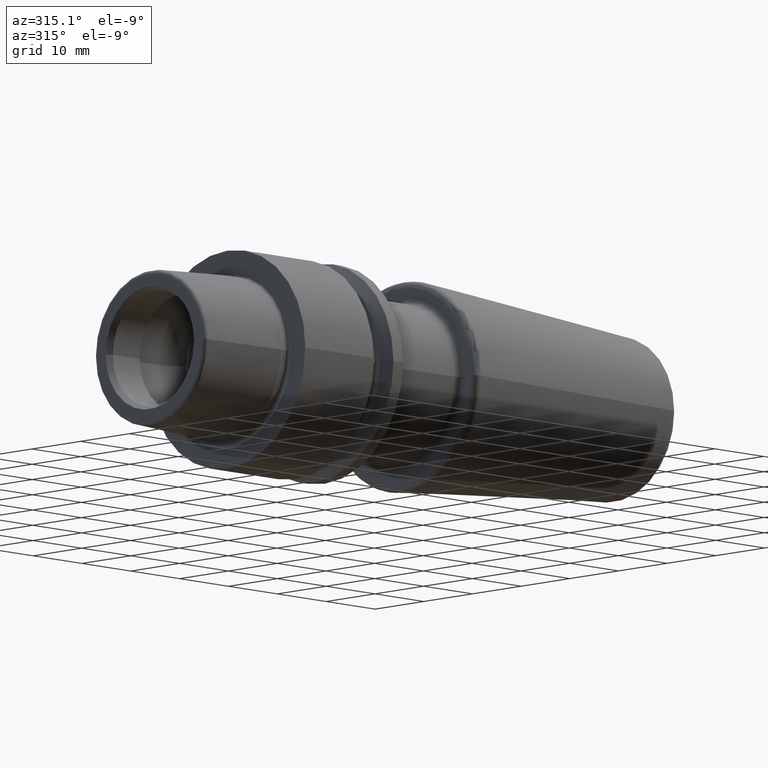
[diagram: clean part render]
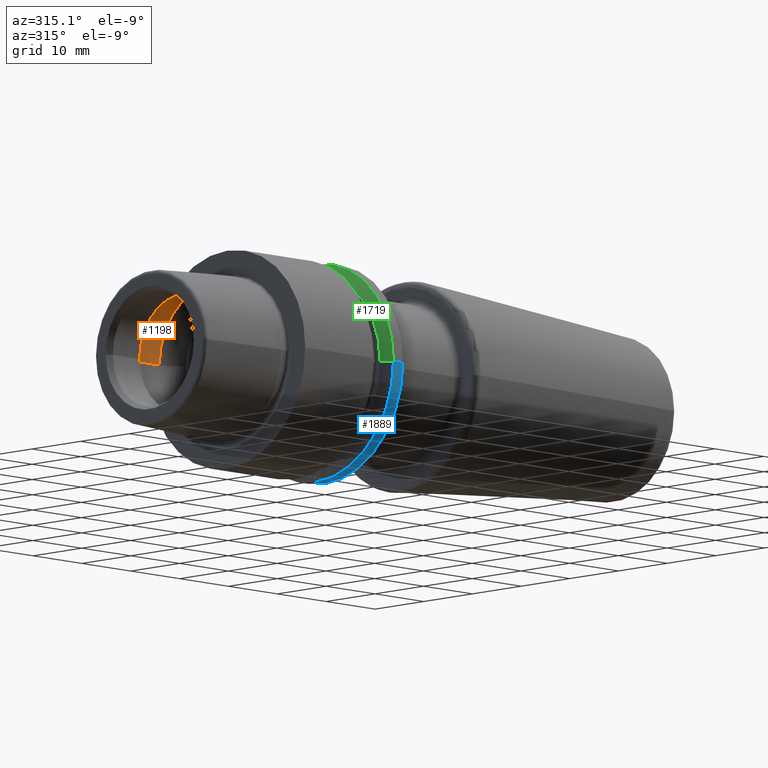
[diagram: same view with three faces highlighted in distinct colors, each labeled with its STEP entity id]
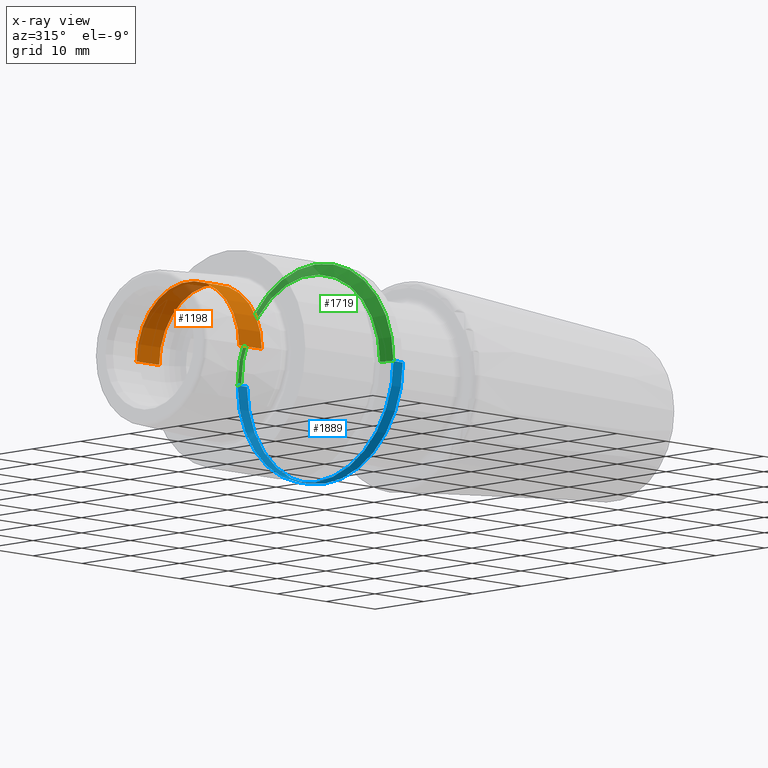
[diagram: x-ray of the same camera — body ghosted, the three highlighted faces saturated]
A machine part, auxiliary view with three faces highlighted in distinct colors.
The next image is the same camera in x-ray (body ghosted, the three faces saturated) — at least one of them is partly hidden behind the body in this view.
Their STEP definitions:

[orange] entity #1198 — the highlighted cylindrical surface (partial cylindrical patch) has radius 10.5325 mm, axis along (1, 0, 0).
#147=CARTESIAN_POINT('',(-8.092945739386E0,0.E0,0.E0));
#148=DIRECTION('',(1.E0,0.E0,0.E0));
#149=DIRECTION('',(0.E0,1.E0,0.E0));
#150=AXIS2_PLACEMENT_3D('',#147,#148,#149);
#152=CARTESIAN_POINT('',(-3.472718675620E0,0.E0,0.E0));
#153=DIRECTION('',(1.E0,0.E0,0.E0));
#154=DIRECTION('',(0.E0,1.E0,0.E0));
#155=AXIS2_PLACEMENT_3D('',#152,#153,#154);
#157=DIRECTION('',(-1.E0,0.E0,0.E0));
#158=VECTOR('',#157,4.620227063766E0);
#159=CARTESIAN_POINT('',(-3.472718675620E0,1.05325E1,0.E0));
#160=LINE('',#159,#158);
#166=DIRECTION('',(-1.E0,0.E0,0.E0));
#167=VECTOR('',#166,4.620227063766E0);
#168=CARTESIAN_POINT('',(-3.472718675620E0,-1.05325E1,0.E0));
#169=LINE('',#168,#167);
#868=CARTESIAN_POINT('',(-3.472718675620E0,1.05325E1,0.E0));
#869=VERTEX_POINT('',#868);
#870=CARTESIAN_POINT('',(-8.092945739386E0,1.05325E1,0.E0));
#871=VERTEX_POINT('',#870);
#880=CARTESIAN_POINT('',(-3.472718675620E0,-1.05325E1,0.E0));
#881=VERTEX_POINT('',#880);
#882=CARTESIAN_POINT('',(-8.092945739386E0,-1.05325E1,0.E0));
#883=VERTEX_POINT('',#882);
#1184=CARTESIAN_POINT('',(-1.70925E1,0.E0,0.E0));
#1185=DIRECTION('',(1.E0,0.E0,0.E0));
#1186=DIRECTION('',(0.E0,-1.E0,0.E0));
#1187=AXIS2_PLACEMENT_3D('',#1184,#1185,#1186);
#1188=CYLINDRICAL_SURFACE('',#1187,1.05325E1);
#1190=ORIENTED_EDGE('',*,*,#1189,.T.);
#1191=ORIENTED_EDGE('',*,*,#1179,.T.);
#1193=ORIENTED_EDGE('',*,*,#1192,.F.);
#1195=ORIENTED_EDGE('',*,*,#1194,.F.);
#1196=EDGE_LOOP('',(#1190,#1191,#1193,#1195));
#1197=FACE_OUTER_BOUND('',#1196,.F.);
#1198=ADVANCED_FACE('',(#1197),#1188,.F.);
#151=CIRCLE('',#150,1.05325E1);
#156=CIRCLE('',#155,1.05325E1);
#1179=EDGE_CURVE('',#871,#883,#151,.T.);
#1189=EDGE_CURVE('',#869,#871,#160,.T.);
#1192=EDGE_CURVE('',#881,#883,#169,.T.);
#1194=EDGE_CURVE('',#869,#881,#156,.T.);

[blue] entity #1889 — the highlighted cylindrical surface (partial cylindrical patch) has radius 16 mm, axis along (1, 0, 0).
#591=CARTESIAN_POINT('',(1.803515969889E1,0.E0,0.E0));
#592=DIRECTION('',(1.E0,0.E0,0.E0));
#593=DIRECTION('',(0.E0,-1.E0,0.E0));
#594=AXIS2_PLACEMENT_3D('',#591,#592,#593);
#596=DIRECTION('',(-1.E0,0.E0,0.E0));
#597=VECTOR('',#596,1.914840301107E0);
#598=CARTESIAN_POINT('',(1.995E1,-1.6E1,0.E0));
#599=LINE('',#598,#597);
#600=CARTESIAN_POINT('',(1.995E1,0.E0,0.E0));
#601=DIRECTION('',(-1.E0,0.E0,0.E0));
#602=DIRECTION('',(0.E0,1.E0,0.E0));
#603=AXIS2_PLACEMENT_3D('',#600,#601,#602);
#605=DIRECTION('',(-1.E0,0.E0,0.E0));
#606=VECTOR('',#605,1.914840301107E0);
#607=CARTESIAN_POINT('',(1.995E1,1.6E1,0.E0));
#608=LINE('',#607,#606);
#850=CARTESIAN_POINT('',(1.803515969889E1,1.6E1,0.E0));
#851=VERTEX_POINT('',#850);
#854=CARTESIAN_POINT('',(1.803515969889E1,-1.6E1,0.E0));
#855=VERTEX_POINT('',#854);
#858=CARTESIAN_POINT('',(1.995E1,1.6E1,0.E0));
#859=CARTESIAN_POINT('',(1.995E1,-1.6E1,0.E0));
#860=VERTEX_POINT('',#858);
#861=VERTEX_POINT('',#859);
#1877=CARTESIAN_POINT('',(-1.76925E1,0.E0,0.E0));
#1878=DIRECTION('',(1.E0,0.E0,0.E0));
#1879=DIRECTION('',(0.E0,-1.E0,0.E0));
#1880=AXIS2_PLACEMENT_3D('',#1877,#1878,#1879);
#1881=CYLINDRICAL_SURFACE('',#1880,1.6E1);
#1882=ORIENTED_EDGE('',*,*,#1729,.F.);
#1883=ORIENTED_EDGE('',*,*,#1685,.F.);
#1885=ORIENTED_EDGE('',*,*,#1884,.F.);
#1886=ORIENTED_EDGE('',*,*,#1681,.T.);
#1887=EDGE_LOOP('',(#1882,#1883,#1885,#1886));
#1888=FACE_OUTER_BOUND('',#1887,.F.);
#1889=ADVANCED_FACE('',(#1888),#1881,.T.);
#595=CIRCLE('',#594,1.6E1);
#604=CIRCLE('',#603,1.6E1);
#1681=EDGE_CURVE('',#860,#851,#608,.T.);
#1685=EDGE_CURVE('',#861,#855,#599,.T.);
#1729=EDGE_CURVE('',#855,#851,#595,.T.);
#1884=EDGE_CURVE('',#860,#861,#604,.T.);

[green] entity #1719 — the highlighted conical surface has half-angle 60 deg.
#472=CARTESIAN_POINT('',(1.803515969889E1,0.E0,0.E0));
#473=DIRECTION('',(1.E0,0.E0,0.E0));
#474=DIRECTION('',(0.E0,1.E0,0.E0));
#475=AXIS2_PLACEMENT_3D('',#472,#473,#474);
#487=CARTESIAN_POINT('',(1.70375E1,0.E0,0.E0));
#488=DIRECTION('',(1.E0,0.E0,0.E0));
#489=DIRECTION('',(0.E0,1.E0,0.E0));
#490=AXIS2_PLACEMENT_3D('',#487,#488,#489);
#492=DIRECTION('',(5.E-1,8.660254037844E-1,0.E0));
#493=VECTOR('',#492,1.995319397787E0);
#494=CARTESIAN_POINT('',(1.70375E1,1.427200271285E1,0.E0));
#495=LINE('',#494,#493);
#501=DIRECTION('',(5.E-1,-8.660254037844E-1,0.E0));
#502=VECTOR('',#501,1.995319397787E0);
#503=CARTESIAN_POINT('',(1.70375E1,-1.427200271285E1,0.E0));
#504=LINE('',#503,#502);
#846=CARTESIAN_POINT('',(1.70375E1,1.427200271285E1,0.E0));
#847=CARTESIAN_POINT('',(1.70375E1,-1.427200271285E1,0.E0));
#848=VERTEX_POINT('',#846);
#849=VERTEX_POINT('',#847);
#850=CARTESIAN_POINT('',(1.803515969889E1,1.6E1,0.E0));
#851=VERTEX_POINT('',#850);
#854=CARTESIAN_POINT('',(1.803515969889E1,-1.6E1,0.E0));
#855=VERTEX_POINT('',#854);
#1705=CARTESIAN_POINT('',(1.753632984945E1,0.E0,0.E0));
#1706=DIRECTION('',(1.E0,0.E0,0.E0));
#1707=DIRECTION('',(0.E0,-1.E0,0.E0));
#1708=AXIS2_PLACEMENT_3D('',#1705,#1706,#1707);
#1709=CONICAL_SURFACE('',#1708,1.513600135643E1,6.E1);
#1711=ORIENTED_EDGE('',*,*,#1710,.T.);
#1712=ORIENTED_EDGE('',*,*,#1679,.T.);
#1714=ORIENTED_EDGE('',*,*,#1713,.F.);
#1716=ORIENTED_EDGE('',*,*,#1715,.F.);
#1717=EDGE_LOOP('',(#1711,#1712,#1714,#1716));
#1718=FACE_OUTER_BOUND('',#1717,.F.);
#1719=ADVANCED_FACE('',(#1718),#1709,.T.);
#476=CIRCLE('',#475,1.6E1);
#491=CIRCLE('',#490,1.427200271285E1);
#1679=EDGE_CURVE('',#851,#855,#476,.T.);
#1710=EDGE_CURVE('',#848,#851,#495,.T.);
#1713=EDGE_CURVE('',#849,#855,#504,.T.);
#1715=EDGE_CURVE('',#848,#849,#491,.T.);